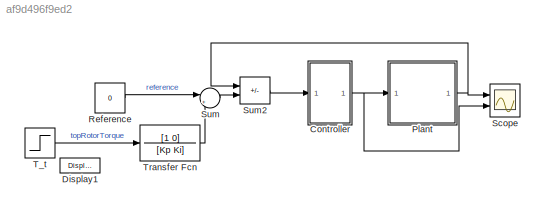
MODEL slx_af9d496f9ed2
KIND model
CONFIG AbsTol = auto
CONFIG EnableMultiTasking = off
CONFIG FixedStep = auto
CONFIG MaxStep = auto
CONFIG MinStep = auto
CONFIG RelTol = 1e-3
CONFIG SampleTimeConstraint = Unconstrained
CONFIG SolverName = VariableStepAuto
CONFIG StartTime = 0.0
CONFIG StopTime = 50
WORKSPACE source: MATLAB code (in-file)
WORKSPACE I_yy = 20
WORKSPACE Kp = 10
WORKSPACE Ki = 10
WORKSPACE b = 5
WORKSPACE init_vel = 0
WORKSPACE inverse_I_yy = 1/I_yy  (= 0.05)
WORKSPACE inverse_Kp = 1/Kp  (= 0.1)
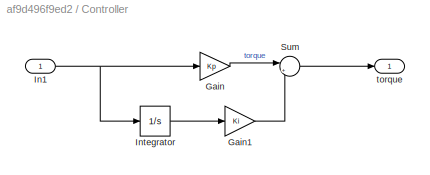
BLOCK [SubSystem] Controller
  Ports = [1, 1]
  RequestExecContextInheritance = off
BLOCK [Gain] Controller/Gain
  Gain = Kp
BLOCK [Gain] Controller/Gain1
  Gain = Ki
BLOCK [Inport] Controller/In1
BLOCK [Integrator] Controller/Integrator
  Ports = [1, 1]
BLOCK [Sum] Controller/Sum
  Inputs = |++
  Ports = [2, 1]
BLOCK [Outport] Controller/torque
BLOCK [DisplayBlock] Display1
  LabelPosition = Hide
  Transparency = 1
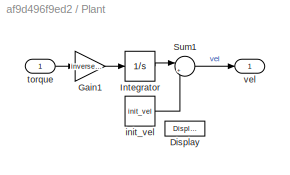
BLOCK [SubSystem] Plant
  Ports = [1, 1]
  RequestExecContextInheritance = off
BLOCK [DisplayBlock] Plant/Display
  LabelPosition = Hide
  Transparency = 1
BLOCK [Gain] Plant/Gain1
  Gain = inverse_I_yy
BLOCK [Integrator] Plant/Integrator
  Ports = [1, 1]
BLOCK [Sum] Plant/Sum1
  Inputs = |++
  Ports = [2, 1]
BLOCK [Constant] Plant/init_vel
  Value = init_vel
BLOCK [Inport] Plant/torque
BLOCK [Outport] Plant/vel
BLOCK [Constant] Reference
  Value = 0
BLOCK [Scope] Scope
  Floating = off
  NumInputPorts = 2
  Ports = [2]
  ScopeSpecificationString = Simulink.scopes.TimeScopeBlockCfg('CurrentConfiguration', extmgr.ConfigurationSet(extmgr.Configuration('Core','General UI',true,'FigureColor',[1 1 1]),extmgr.Configuration('Core','Source UI',true),extmgr.Configuration('Sources','WiredSimulink',true),extmgr.Configuration('Visuals','Time Domain',true,'SerializedDisplays',{struct('MinYLimReal','-2.78612','MaxYLimReal','5.86512','YLabelReal','','MinYL...<+1722ch>
BLOCK [Sum] Sum
  Inputs = |++
  Ports = [2, 1]
BLOCK [Sum] Sum2
  IconShape = rectangular
  Inputs = -+
  Ports = [2, 1]
BLOCK [Step] T_t
  After = b
  SampleTime = 0
BLOCK [TransferFcn] Transfer Fcn
  Denominator = [Kp Ki]
  Numerator = [1 0]
LINE Controller/Gain1:1 -> Controller/Sum:2
LINE Controller/Gain:1 -> Controller/Sum:1
NET Controller/In1:1 -> Controller/Gain:1, Controller/Integrator:1
LINE Controller/Integrator:1 -> Controller/Gain1:1
LINE Controller/Sum:1 -> Controller/torque:1
NET Controller:1 -> Plant:1, Scope:2
LINE Plant/Gain1:1 -> Plant/Integrator:1
LINE Plant/Integrator:1 -> Plant/Sum1:1
LINE Plant/Sum1:1 -> Plant/vel:1
LINE Plant/init_vel:1 -> Plant/Sum1:2
LINE Plant/torque:1 -> Plant/Gain1:1
NET Plant:1 -> Scope:1, Sum2:1
LINE Reference:1 -> Sum:1
LINE Sum2:1 -> Controller:1
LINE Sum:1 -> Sum2:2
LINE T_t:1 -> Transfer Fcn:1
LINE Transfer Fcn:1 -> Sum:2
note: NET lines group one-source signal fan-out (src -> all destinations, sorted); 1:1 wires keep LINE
